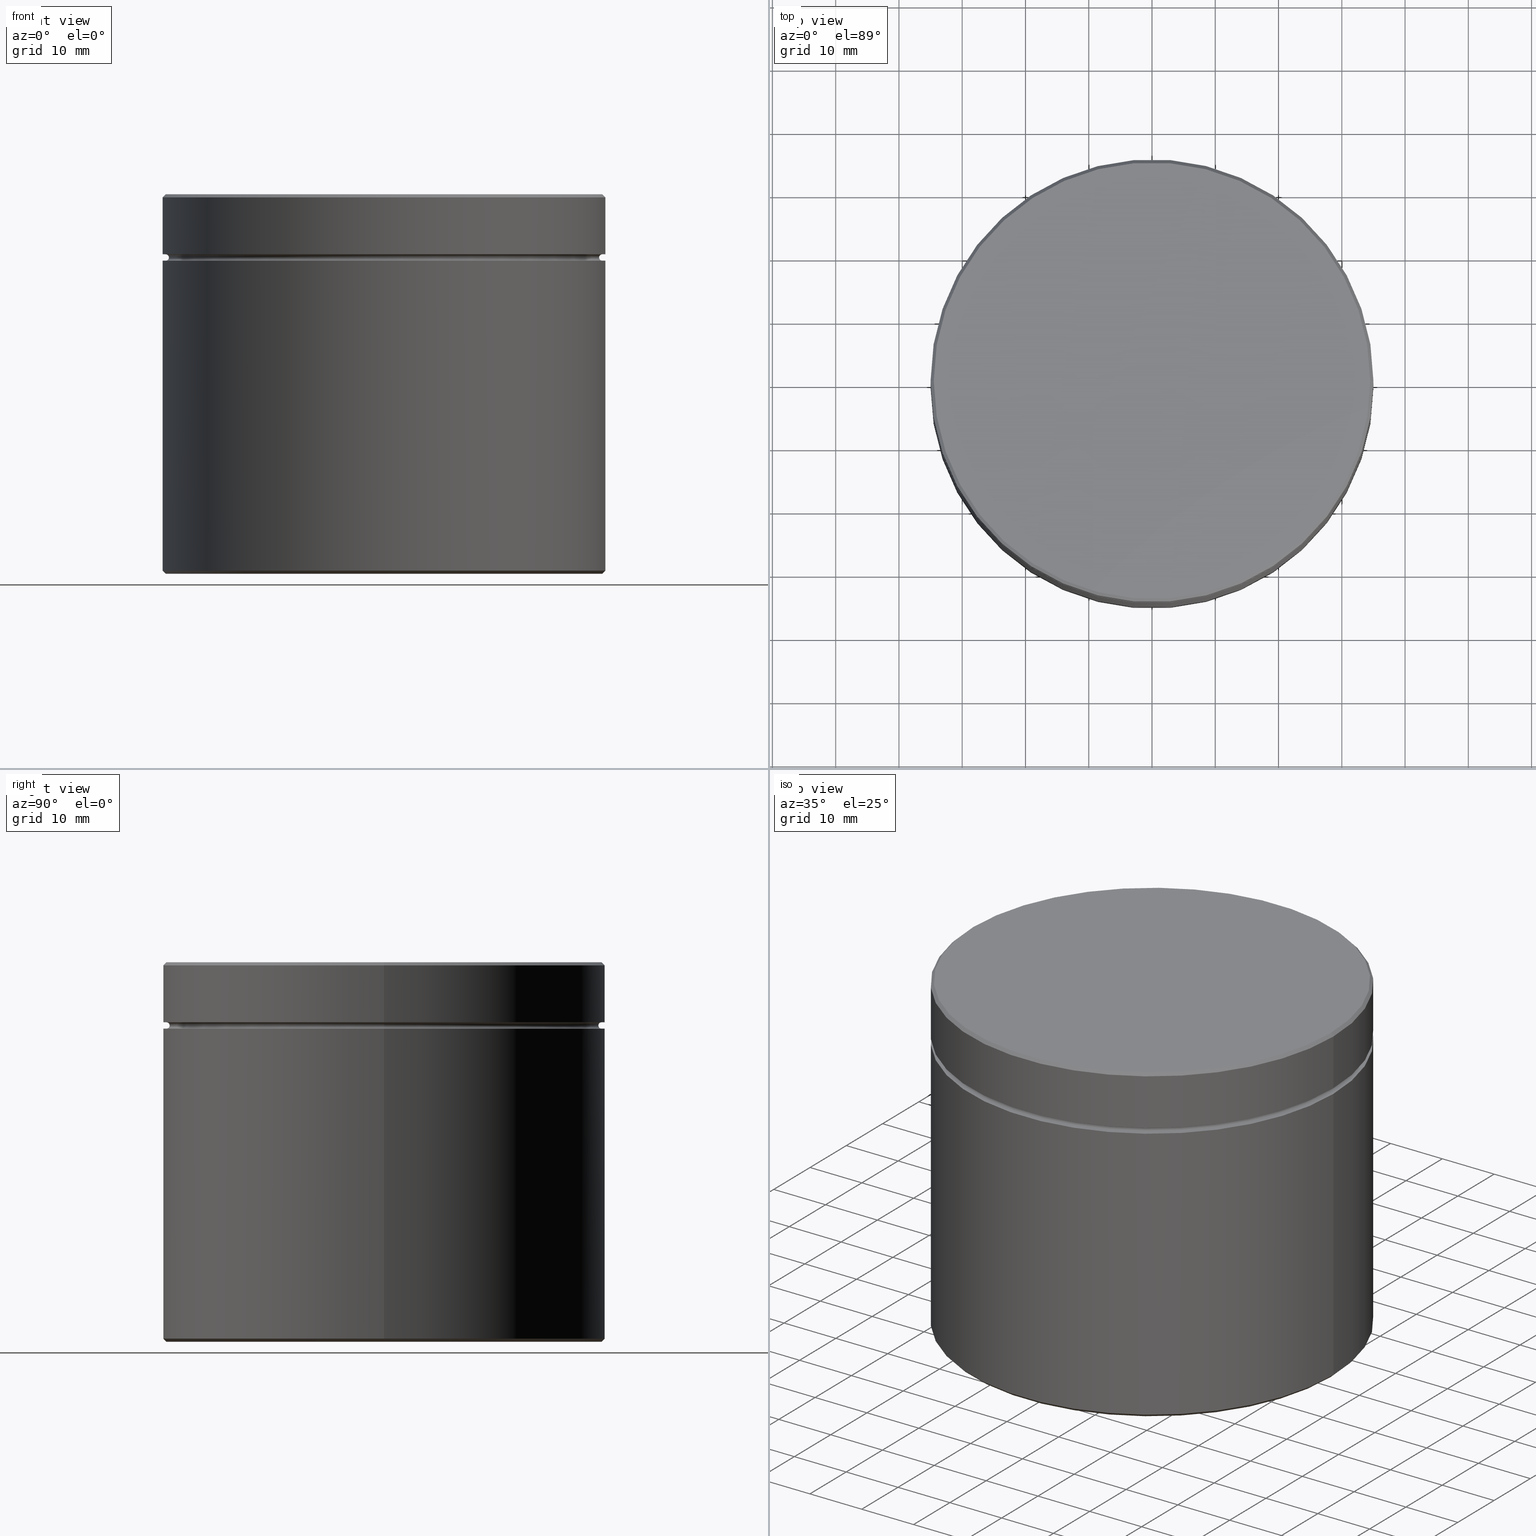
[diagram: canonical four-view strip — front | top / right | iso, engineering-drawing reading convention]
A machine part, canonical four-view strip (front | top / right | iso — engineering-drawing reading convention). The complete STEP part file that produces these views, byte-faithful:
ISO-10303-21;
HEADER;
FILE_DESCRIPTION (( 'STEP AP203' ),
    '1' );
FILE_NAME ('f571.STEP',
    '2024-01-08T12:13:48',
    ( '' ),
    ( '' ),
    'SwSTEP 2.0',
    'SolidWorks 2019',
    '' );
FILE_SCHEMA (( 'CONFIG_CONTROL_DESIGN' ));
ENDSEC;

DATA;
#1 = ORIENTED_EDGE ( 'NONE', *, *, #62, .F. ) ;
#2 = CARTESIAN_POINT ( 'NONE',  ( -25.00000000000000000, 0.000000000000000000, -17.99999999999999645 ) ) ;
#3 = AXIS2_PLACEMENT_3D ( 'NONE', #224, #495, #232 ) ;
#4 = CARTESIAN_POINT ( 'NONE',  ( 0.000000000000000000, 0.000000000000000000, -9.500000000000000000 ) ) ;
#5 = EDGE_LOOP ( 'NONE', ( #171, #150, #112, #20 ) ) ;
#6 = PERSON_AND_ORGANIZATION_ROLE ( 'design_owner' ) ;
#7 = DIRECTION ( 'NONE',  ( 0.000000000000000000, 0.000000000000000000, -1.000000000000000000 ) ) ;
#8 = PERSON_AND_ORGANIZATION_ROLE ( 'design_supplier' ) ;
#9 = EDGE_LOOP ( 'NONE', ( #514, #355 ) ) ;
#10 = VECTOR ( 'NONE', #418, 1000.000000000000000 ) ;
#11 = EDGE_CURVE ( 'NONE', #106, #347, #109, .T. ) ;
#12 = DIRECTION ( 'NONE',  ( 1.000000000000000000, 0.000000000000000000, 0.000000000000000000 ) ) ;
#13 = ORIENTED_EDGE ( 'NONE', *, *, #62, .T. ) ;
#14 = DIRECTION ( 'NONE',  ( -0.7071067811865426878, 8.659560562354874926E-17, 0.7071067811865524577 ) ) ;
#15 = AXIS2_PLACEMENT_3D ( 'NONE', #169, #354, #406 ) ;
#16 = ORIENTED_EDGE ( 'NONE', *, *, #276, .F. ) ;
#17 = CC_DESIGN_PERSON_AND_ORGANIZATION_ASSIGNMENT ( #310, #223, ( #245 ) ) ;
#18 = AXIS2_PLACEMENT_3D ( 'NONE', #126, #483, #440 ) ;
#19 = CARTESIAN_POINT ( 'NONE',  ( -34.50000000000002132, 4.255647627037053498E-15, -60.00000000000000000 ) ) ;
#20 = ORIENTED_EDGE ( 'NONE', *, *, #368, .F. ) ;
#21 = DIRECTION ( 'NONE',  ( -1.000000000000000000, 0.000000000000000000, -0.000000000000000000 ) ) ;
#22 = ORIENTED_EDGE ( 'NONE', *, *, #473, .F. ) ;
#23 = EDGE_CURVE ( 'NONE', #166, #345, #64, .T. ) ;
#24 = AXIS2_PLACEMENT_3D ( 'NONE', #118, #256, #258 ) ;
#25 = CARTESIAN_POINT ( 'NONE',  ( -34.50000000000000000, 4.225031457058368922E-15, -10.50000000000000178 ) ) ;
#26 = AXIS2_PLACEMENT_3D ( 'NONE', #272, #219, #405 ) ;
#27 =( NAMED_UNIT ( * ) SI_UNIT ( $, .STERADIAN. ) SOLID_ANGLE_UNIT ( ) );
#28 = DIRECTION ( 'NONE',  ( 0.7071067811865573427, 8.659560562355053653E-17, -0.7071067811865378028 ) ) ;
#29 = ADVANCED_FACE ( 'NONE', ( #477 ), #551, .T. ) ;
#30 = CYLINDRICAL_SURFACE ( 'NONE', #56, 35.00000000000000000 ) ;
#31 = AXIS2_PLACEMENT_3D ( 'NONE', #331, #184, #545 ) ;
#32 = AXIS2_PLACEMENT_3D ( 'NONE', #61, #53, #186 ) ;
#33 = CC_DESIGN_APPROVAL ( #287, ( #58 ) ) ;
#34 = FACE_OUTER_BOUND ( 'NONE', #132, .T. ) ;
#35 = ORIENTED_EDGE ( 'NONE', *, *, #368, .T. ) ;
#36 = CARTESIAN_POINT ( 'NONE',  ( 35.00000000000000000, 0.000000000000000000, -59.50000000000001421 ) ) ;
#37 = VERTEX_POINT ( 'NONE', #197 ) ;
#38 = APPROVAL_STATUS ( 'not_yet_approved' ) ;
#39 = CARTESIAN_POINT ( 'NONE',  ( 0.000000000000000000, 0.000000000000000000, -10.00000000000000178 ) ) ;
#40 = DIRECTION ( 'NONE',  ( -1.000000000000000000, 0.000000000000000000, 0.000000000000000000 ) ) ;
#41 = VERTEX_POINT ( 'NONE', #385 ) ;
#42 = COORDINATED_UNIVERSAL_TIME_OFFSET ( 1, 0, .AHEAD. ) ;
#43 = DIRECTION ( 'NONE',  ( 1.000000000000000000, 0.000000000000000000, 0.000000000000000000 ) ) ;
#44 = VECTOR ( 'NONE', #416, 1000.000000000000000 ) ;
#45 = FACE_OUTER_BOUND ( 'NONE', #96, .T. ) ;
#46 = ORIENTED_EDGE ( 'NONE', *, *, #324, .F. ) ;
#47 = APPROVAL_DATE_TIME ( #167, #502 ) ;
#48 = DIRECTION ( 'NONE',  ( -0.000000000000000000, -0.000000000000000000, -1.000000000000000000 ) ) ;
#49 = FACE_OUTER_BOUND ( 'NONE', #359, .T. ) ;
#50 = EDGE_LOOP ( 'NONE', ( #200, #222, #542, #294 ) ) ;
#51 = PERSON_AND_ORGANIZATION ( #250, #505 ) ;
#52 = EDGE_CURVE ( 'NONE', #372, #530, #274, .T. ) ;
#53 = DIRECTION ( 'NONE',  ( -0.000000000000000000, -0.000000000000000000, 1.000000000000000000 ) ) ;
#54 = ORIENTED_EDGE ( 'NONE', *, *, #361, .T. ) ;
#55 = FACE_OUTER_BOUND ( 'NONE', #455, .T. ) ;
#56 = AXIS2_PLACEMENT_3D ( 'NONE', #393, #446, #529 ) ;
#57 =( GEOMETRIC_REPRESENTATION_CONTEXT ( 3 ) GLOBAL_UNCERTAINTY_ASSIGNED_CONTEXT ( ( #191 ) ) GLOBAL_UNIT_ASSIGNED_CONTEXT ( ( #334, #65, #27 ) ) REPRESENTATION_CONTEXT ( 'NONE', 'WORKASPACE' ) );
#58 = SECURITY_CLASSIFICATION ( '', '', #260 ) ;
#59 = ORIENTED_EDGE ( 'NONE', *, *, #76, .T. ) ;
#60 = LINE ( 'NONE', #547, #10 ) ;
#61 = CARTESIAN_POINT ( 'NONE',  ( 0.000000000000000000, 0.000000000000000000, -59.50000000000001421 ) ) ;
#62 = EDGE_CURVE ( 'NONE', #506, #37, #159, .T. ) ;
#63 = ORIENTED_EDGE ( 'NONE', *, *, #299, .F. ) ;
#64 = CIRCLE ( 'NONE', #153, 35.00000000000000000 ) ;
#65 =( NAMED_UNIT ( * ) PLANE_ANGLE_UNIT ( ) SI_UNIT ( $, .RADIAN. ) );
#66 = CIRCLE ( 'NONE', #137, 25.00000000000000000 ) ;
#67 = VECTOR ( 'NONE', #48, 1000.000000000000000 ) ;
#68 = VERTEX_POINT ( 'NONE', #25 ) ;
#69 = CARTESIAN_POINT ( 'NONE',  ( -35.00000000000000000, 4.286263797015736496E-15, 0.000000000000000000 ) ) ;
#70 = ORIENTED_EDGE ( 'NONE', *, *, #76, .F. ) ;
#71 = EDGE_CURVE ( 'NONE', #144, #521, #107, .T. ) ;
#72 = EDGE_LOOP ( 'NONE', ( #336, #234, #94, #453 ) ) ;
#73 = CIRCLE ( 'NONE', #366, 35.00000000000000000 ) ;
#74 = EDGE_LOOP ( 'NONE', ( #264, #382, #461, #257 ) ) ;
#75 = AXIS2_PLACEMENT_3D ( 'NONE', #379, #292, #195 ) ;
#76 = EDGE_CURVE ( 'NONE', #345, #166, #73, .T. ) ;
#77 = CARTESIAN_POINT ( 'NONE',  ( 0.000000000000000000, 0.000000000000000000, -10.50000000000000000 ) ) ;
#78 = VERTEX_POINT ( 'NONE', #203 ) ;
#79 = PLANE ( 'NONE',  #423 ) ;
#80 = VERTEX_POINT ( 'NONE', #298 ) ;
#81 = DIRECTION ( 'NONE',  ( -0.000000000000000000, -1.000000000000000000, -0.000000000000000000 ) ) ;
#82 = DIRECTION ( 'NONE',  ( 0.000000000000000000, -0.000000000000000000, 1.000000000000000000 ) ) ;
#83 = CALENDAR_DATE ( 2024, 8, 1 ) ;
#84 = ADVANCED_FACE ( 'NONE', ( #431 ), #389, .F. ) ;
#85 = DIRECTION ( 'NONE',  ( 0.7071067811865426878, 0.000000000000000000, 0.7071067811865524577 ) ) ;
#86 = ORIENTED_EDGE ( 'NONE', *, *, #238, .F. ) ;
#87 = DIRECTION ( 'NONE',  ( 1.000000000000000000, 0.000000000000000000, 0.000000000000000000 ) ) ;
#88 = DIRECTION ( 'NONE',  ( 1.000000000000000000, 0.000000000000000000, 0.000000000000000000 ) ) ;
#89 = ORIENTED_EDGE ( 'NONE', *, *, #276, .T. ) ;
#90 = APPROVAL_DATE_TIME ( #314, #233 ) ;
#91 = APPROVAL_PERSON_ORGANIZATION ( #97, #502, #317 ) ;
#92 = FACE_OUTER_BOUND ( 'NONE', #9, .T. ) ;
#93 = ADVANCED_FACE ( 'NONE', ( #390 ), #263, .F. ) ;
#94 = ORIENTED_EDGE ( 'NONE', *, *, #187, .F. ) ;
#95 = CARTESIAN_POINT ( 'NONE',  ( 35.00000000000000000, 0.000000000000000000, -59.50000000000001421 ) ) ;
#96 = EDGE_LOOP ( 'NONE', ( #211, #430, #1, #259 ) ) ;
#97 = PERSON_AND_ORGANIZATION ( #250, #505 ) ;
#98 = CARTESIAN_POINT ( 'NONE',  ( 0.000000000000000000, 0.000000000000000000, -0.4999999999999727995 ) ) ;
#99 = DIRECTION ( 'NONE',  ( -0.000000000000000000, -0.000000000000000000, 1.000000000000000000 ) ) ;
#100 = ORIENTED_EDGE ( 'NONE', *, *, #540, .F. ) ;
#101 = EDGE_CURVE ( 'NONE', #106, #339, #488, .T. ) ;
#102 = LOCAL_TIME ( 13, 13, 48.00000000000000000, #42 ) ;
#103 = ORIENTED_EDGE ( 'NONE', *, *, #557, .T. ) ;
#104 = DIRECTION ( 'NONE',  ( -0.000000000000000000, -0.000000000000000000, 1.000000000000000000 ) ) ;
#105 = DIRECTION ( 'NONE',  ( -1.000000000000000000, 0.000000000000000000, 0.000000000000000000 ) ) ;
#106 = VERTEX_POINT ( 'NONE', #564 ) ;
#107 = CIRCLE ( 'NONE', #285, 25.00000000000000000 ) ;
#108 = AXIS2_PLACEMENT_3D ( 'NONE', #457, #289, #21 ) ;
#109 = LINE ( 'NONE', #343, #346 ) ;
#110 = ADVANCED_FACE ( 'NONE', ( #303 ), #146, .T. ) ;
#111 = DIRECTION ( 'NONE',  ( 0.000000000000000000, 0.000000000000000000, -1.000000000000000000 ) ) ;
#112 = ORIENTED_EDGE ( 'NONE', *, *, #145, .T. ) ;
#113 = EDGE_LOOP ( 'NONE', ( #300, #410, #128, #16 ) ) ;
#114 = CC_DESIGN_DATE_AND_TIME_ASSIGNMENT ( #411, #498, ( #311 ) ) ;
#115 = DIRECTION ( 'NONE',  ( 1.000000000000000000, 0.000000000000000000, 0.000000000000000000 ) ) ;
#116 = CC_DESIGN_APPROVAL ( #502, ( #245 ) ) ;
#117 = ORIENTED_EDGE ( 'NONE', *, *, #283, .F. ) ;
#118 = CARTESIAN_POINT ( 'NONE',  ( 0.000000000000000000, 0.000000000000000000, -59.50000000000001421 ) ) ;
#119 = ORIENTED_EDGE ( 'NONE', *, *, #101, .F. ) ;
#120 = CARTESIAN_POINT ( 'NONE',  ( 0.000000000000000000, 0.000000000000000000, -59.50000000000001421 ) ) ;
#121 = DIRECTION ( 'NONE',  ( 1.000000000000000000, 0.000000000000000000, 0.000000000000000000 ) ) ;
#122 = APPROVAL_PERSON_ORGANIZATION ( #227, #233, #129 ) ;
#123 = EDGE_LOOP ( 'NONE', ( #465, #103, #140, #117 ) ) ;
#124 = MECHANICAL_CONTEXT ( 'NONE', #481, 'mechanical' ) ;
#125 = EDGE_CURVE ( 'NONE', #530, #372, #544, .T. ) ;
#126 = CARTESIAN_POINT ( 'NONE',  ( 0.000000000000000000, 35.00000000000000000, -60.00000000000000000 ) ) ;
#127 = CARTESIAN_POINT ( 'NONE',  ( -35.00000000000000000, 4.286263797015736496E-15, -10.50000000000000000 ) ) ;
#128 = ORIENTED_EDGE ( 'NONE', *, *, #261, .T. ) ;
#129 = APPROVAL_ROLE ( '' ) ;
#130 = CARTESIAN_POINT ( 'NONE',  ( -34.50000000000000000, 0.000000000000000000, -9.499999999999998224 ) ) ;
#131 = LINE ( 'NONE', #36, #391 ) ;
#132 = EDGE_LOOP ( 'NONE', ( #476, #100, #511, #54 ) ) ;
#133 = CARTESIAN_POINT ( 'NONE',  ( -25.00000000000000000, 0.000000000000000000, -17.99999999999999645 ) ) ;
#134 = EDGE_CURVE ( 'NONE', #37, #506, #503, .T. ) ;
#135 = DIRECTION ( 'NONE',  ( -1.224646799147353207E-16, 1.000000000000000000, 0.000000000000000000 ) ) ;
#136 = ORIENTED_EDGE ( 'NONE', *, *, #519, .F. ) ;
#137 = AXIS2_PLACEMENT_3D ( 'NONE', #262, #441, #40 ) ;
#138 = DIRECTION ( 'NONE',  ( 1.000000000000000000, 0.000000000000000000, 0.000000000000000000 ) ) ;
#139 = VECTOR ( 'NONE', #419, 1000.000000000000000 ) ;
#140 = ORIENTED_EDGE ( 'NONE', *, *, #437, .T. ) ;
#141 = EDGE_LOOP ( 'NONE', ( #280, #328 ) ) ;
#142 = DIRECTION ( 'NONE',  ( 1.000000000000000000, 0.000000000000000000, 0.000000000000000000 ) ) ;
#143 = DIRECTION ( 'NONE',  ( -1.000000000000000000, 1.224646799147349509E-16, 0.000000000000000000 ) ) ;
#144 = VERTEX_POINT ( 'NONE', #365 ) ;
#145 = EDGE_CURVE ( 'NONE', #80, #218, #444, .T. ) ;
#146 = CONICAL_SURFACE ( 'NONE', #413, 35.00000000000000000, 0.7853981633974415066 ) ;
#147 = PRODUCT_RELATED_PRODUCT_CATEGORY ( 'detail', '', ( #356 ) ) ;
#148 = VECTOR ( 'NONE', #241, 1000.000000000000000 ) ;
#149 = CARTESIAN_POINT ( 'NONE',  ( 35.00000000000000000, 0.000000000000000000, -0.4999999999999727995 ) ) ;
#150 = ORIENTED_EDGE ( 'NONE', *, *, #348, .F. ) ;
#151 = DIRECTION ( 'NONE',  ( 1.000000000000000000, 0.000000000000000000, 0.000000000000000000 ) ) ;
#152 = CALENDAR_DATE ( 2024, 8, 1 ) ;
#153 = AXIS2_PLACEMENT_3D ( 'NONE', #77, #554, #291 ) ;
#154 = EDGE_CURVE ( 'NONE', #80, #37, #516, .T. ) ;
#155 = AXIS2_PLACEMENT_3D ( 'NONE', #409, #509, #270 ) ;
#156 = CARTESIAN_POINT ( 'NONE',  ( 0.000000000000000000, 0.000000000000000000, 0.000000000000000000 ) ) ;
#157 = CARTESIAN_POINT ( 'NONE',  ( 0.000000000000000000, 0.000000000000000000, -9.499999999999998224 ) ) ;
#158 = ADVANCED_FACE ( 'NONE', ( #492 ), #30, .T. ) ;
#159 = CIRCLE ( 'NONE', #237, 34.50000000000000000 ) ;
#160 = CARTESIAN_POINT ( 'NONE',  ( 0.000000000000000000, 0.000000000000000000, -10.50000000000000000 ) ) ;
#161 = CC_DESIGN_DATE_AND_TIME_ASSIGNMENT ( #373, #189, ( #58 ) ) ;
#162 = AXIS2_PLACEMENT_3D ( 'NONE', #380, #192, #105 ) ;
#163 = CARTESIAN_POINT ( 'NONE',  ( 0.000000000000000000, 0.000000000000000000, 0.000000000000000000 ) ) ;
#164 = MANIFOLD_SOLID_BREP ( 'Zaoblit1', #202 ) ;
#165 = ADVANCED_FACE ( 'NONE', ( #92 ), #79, .T. ) ;
#166 = VERTEX_POINT ( 'NONE', #127 ) ;
#167 = DATE_AND_TIME ( #172, #321 ) ;
#168 = PRODUCT_DEFINITION_SHAPE ( 'NONE', 'NONE',  #311 ) ;
#169 = CARTESIAN_POINT ( 'NONE',  ( 0.000000000000000000, 0.000000000000000000, -10.00000000000000178 ) ) ;
#170 = AXIS2_PLACEMENT_3D ( 'NONE', #225, #81, #301 ) ;
#171 = ORIENTED_EDGE ( 'NONE', *, *, #295, .F. ) ;
#172 = CALENDAR_DATE ( 2024, 8, 1 ) ;
#173 = CARTESIAN_POINT ( 'NONE',  ( 25.00000000000000000, 3.061616997868382254E-15, -17.99999999999999645 ) ) ;
#174 = CARTESIAN_POINT ( 'NONE',  ( 0.000000000000000000, 0.000000000000000000, -17.99999999999999645 ) ) ;
#175 = ORIENTED_EDGE ( 'NONE', *, *, #134, .T. ) ;
#176 = APPLICATION_PROTOCOL_DEFINITION ( 'international standard', 'config_control_design', 1994, #332 ) ;
#177 = ADVANCED_FACE ( 'NONE', ( #435 ), #254, .T. ) ;
#178 = DIRECTION ( 'NONE',  ( -1.000000000000000000, 0.000000000000000000, 0.000000000000000000 ) ) ;
#179 = VERTEX_POINT ( 'NONE', #363 ) ;
#180 = CARTESIAN_POINT ( 'NONE',  ( 0.000000000000000000, 0.000000000000000000, -10.50000000000000178 ) ) ;
#181 = CARTESIAN_POINT ( 'NONE',  ( 0.000000000000000000, 0.000000000000000000, -60.00000000000000000 ) ) ;
#182 = EDGE_LOOP ( 'NONE', ( #86, #370 ) ) ;
#183 = AXIS2_PLACEMENT_3D ( 'NONE', #181, #282, #338 ) ;
#184 = DIRECTION ( 'NONE',  ( 0.000000000000000000, 0.000000000000000000, -1.000000000000000000 ) ) ;
#185 = PLANE ( 'NONE',  #18 ) ;
#186 = DIRECTION ( 'NONE',  ( -1.000000000000000000, 0.000000000000000000, 0.000000000000000000 ) ) ;
#187 = EDGE_CURVE ( 'NONE', #439, #41, #230, .T. ) ;
#188 = ORIENTED_EDGE ( 'NONE', *, *, #11, .T. ) ;
#189 = DATE_TIME_ROLE ( 'classification_date' ) ;
#190 = CARTESIAN_POINT ( 'NONE',  ( -25.00000000000000000, 0.000000000000000000, -60.00000000000000000 ) ) ;
#191 = UNCERTAINTY_MEASURE_WITH_UNIT (LENGTH_MEASURE( 1.000000000000000082E-05 ), #334, 'distance_accuracy_value', 'NONE');
#192 = DIRECTION ( 'NONE',  ( -0.000000000000000000, -0.000000000000000000, -1.000000000000000000 ) ) ;
#193 = CARTESIAN_POINT ( 'NONE',  ( 0.000000000000000000, 0.000000000000000000, -9.500000000000000000 ) ) ;
#194 = AXIS2_PLACEMENT_3D ( 'NONE', #499, #549, #151 ) ;
#195 = DIRECTION ( 'NONE',  ( -1.000000000000000000, 0.000000000000000000, 0.000000000000000000 ) ) ;
#196 = ADVANCED_FACE ( 'NONE', ( #34 ), #438, .F. ) ;
#197 = CARTESIAN_POINT ( 'NONE',  ( 34.50000000000000000, 4.225031457058368922E-15, -9.499999999999998224 ) ) ;
#198 = LOCAL_TIME ( 13, 13, 48.00000000000000000, #325 ) ;
#199 = EDGE_CURVE ( 'NONE', #372, #439, #131, .T. ) ;
#200 = ORIENTED_EDGE ( 'NONE', *, *, #154, .F. ) ;
#201 = CARTESIAN_POINT ( 'NONE',  ( 0.000000000000000000, 0.000000000000000000, -60.00000000000000000 ) ) ;
#202 = CLOSED_SHELL ( 'NONE', ( #253, #480, #384, #177, #335, #29, #429, #510, #165, #397, #408, #467, #158, #196, #563, #548, #110, #93, #84 ) ) ;
#203 = CARTESIAN_POINT ( 'NONE',  ( -34.00000000000000000, 4.194415287079684346E-15, -10.00000000000000178 ) ) ;
#204 = AXIS2_PLACEMENT_3D ( 'NONE', #307, #358, #206 ) ;
#205 = VECTOR ( 'NONE', #14, 1000.000000000000000 ) ;
#206 = DIRECTION ( 'NONE',  ( -1.000000000000000000, 0.000000000000000000, 0.000000000000000000 ) ) ;
#207 = EDGE_CURVE ( 'NONE', #179, #494, #66, .T. ) ;
#208 = DIRECTION ( 'NONE',  ( 0.000000000000000000, -1.000000000000000000, 0.000000000000000000 ) ) ;
#209 = DIRECTION ( 'NONE',  ( 0.000000000000000000, 0.000000000000000000, -1.000000000000000000 ) ) ;
#210 = CARTESIAN_POINT ( 'NONE',  ( 0.000000000000000000, 0.000000000000000000, 0.000000000000000000 ) ) ;
#211 = ORIENTED_EDGE ( 'NONE', *, *, #519, .T. ) ;
#212 = PERSON_AND_ORGANIZATION ( #250, #505 ) ;
#213 = ADVANCED_BREP_SHAPE_REPRESENTATION ( 'f571', ( #164, #26 ), #57 ) ;
#214 = DIRECTION ( 'NONE',  ( -0.000000000000000000, -0.000000000000000000, -1.000000000000000000 ) ) ;
#215 = CARTESIAN_POINT ( 'NONE',  ( 34.50000000000000000, 0.000000000000000000, -10.50000000000000178 ) ) ;
#216 = CC_DESIGN_PERSON_AND_ORGANIZATION_ASSIGNMENT ( #407, #269, ( #311 ) ) ;
#217 = CIRCLE ( 'NONE', #333, 34.00000000000000000 ) ;
#218 = VERTEX_POINT ( 'NONE', #215 ) ;
#219 = DIRECTION ( 'NONE',  ( 0.000000000000000000, 0.000000000000000000, 1.000000000000000000 ) ) ;
#220 = CARTESIAN_POINT ( 'NONE',  ( 0.000000000000000000, 0.000000000000000000, -10.00000000000000178 ) ) ;
#221 = DIRECTION ( 'NONE',  ( -0.000000000000000000, -0.000000000000000000, 1.000000000000000000 ) ) ;
#222 = ORIENTED_EDGE ( 'NONE', *, *, #348, .T. ) ;
#223 = PERSON_AND_ORGANIZATION_ROLE ( 'creator' ) ;
#224 = CARTESIAN_POINT ( 'NONE',  ( 0.000000000000000000, 34.00000000000000000, -10.50000000000000178 ) ) ;
#225 = CARTESIAN_POINT ( 'NONE',  ( -34.50000000000000000, 0.000000000000000000, -9.999999999999998224 ) ) ;
#226 = VERTEX_POINT ( 'NONE', #403 ) ;
#227 = PERSON_AND_ORGANIZATION ( #250, #505 ) ;
#228 = CARTESIAN_POINT ( 'NONE',  ( 0.000000000000000000, 0.000000000000000000, -10.00000000000000178 ) ) ;
#229 = EDGE_LOOP ( 'NONE', ( #479, #436 ) ) ;
#230 = CIRCLE ( 'NONE', #24, 35.00000000000000000 ) ;
#231 = AXIS2_PLACEMENT_3D ( 'NONE', #452, #414, #143 ) ;
#232 = DIRECTION ( 'NONE',  ( 1.000000000000000000, 0.000000000000000000, 0.000000000000000000 ) ) ;
#233 = APPROVAL ( #538, 'NEUR�EN�' ) ;
#234 = ORIENTED_EDGE ( 'NONE', *, *, #324, .T. ) ;
#235 = DIRECTION ( 'NONE',  ( -0.000000000000000000, -0.000000000000000000, 1.000000000000000000 ) ) ;
#236 = CARTESIAN_POINT ( 'NONE',  ( -35.00000000000000000, 4.286263797015736496E-15, -0.4999999999999727995 ) ) ;
#237 = AXIS2_PLACEMENT_3D ( 'NONE', #157, #387, #427 ) ;
#238 = EDGE_CURVE ( 'NONE', #226, #278, #464, .T. ) ;
#239 = AXIS2_PLACEMENT_3D ( 'NONE', #478, #208, #522 ) ;
#240 = VECTOR ( 'NONE', #104, 1000.000000000000000 ) ;
#241 = DIRECTION ( 'NONE',  ( -0.000000000000000000, -0.000000000000000000, 1.000000000000000000 ) ) ;
#242 = CARTESIAN_POINT ( 'NONE',  ( 0.000000000000000000, 0.000000000000000000, 0.000000000000000000 ) ) ;
#243 = DIRECTION ( 'NONE',  ( -0.000000000000000000, -0.000000000000000000, 1.000000000000000000 ) ) ;
#244 = CARTESIAN_POINT ( 'NONE',  ( 0.000000000000000000, 0.000000000000000000, 0.000000000000000000 ) ) ;
#245 = PRODUCT_DEFINITION_FORMATION_WITH_SPECIFIED_SOURCE ( 'LIBOVOLN�', '', #356, .NOT_KNOWN. ) ;
#246 = CC_DESIGN_PERSON_AND_ORGANIZATION_ASSIGNMENT ( #51, #6, ( #356 ) ) ;
#247 = LOCAL_TIME ( 13, 13, 48.00000000000000000, #284 ) ;
#248 = ORIENTED_EDGE ( 'NONE', *, *, #23, .T. ) ;
#249 = DIRECTION ( 'NONE',  ( 0.000000000000000000, 0.000000000000000000, -1.000000000000000000 ) ) ;
#250 = PERSON ( 'NEUR�EN�', 'NEUR�EN�', 'NEUR�EN�', ('NEUR�EN�'), ('NEUR�EN�'), ('NEUR�EN�') ) ;
#251 = DIRECTION ( 'NONE',  ( -0.000000000000000000, -0.000000000000000000, 1.000000000000000000 ) ) ;
#252 = APPLICATION_PROTOCOL_DEFINITION ( 'international standard', 'config_control_design', 1994, #481 ) ;
#253 = ADVANCED_FACE ( 'NONE', ( #45 ), #288, .F. ) ;
#254 = CONICAL_SURFACE ( 'NONE', #561, 34.50000000000001421, 0.7853981633974621568 ) ;
#255 = AXIS2_PLACEMENT_3D ( 'NONE', #156, #286, #353 ) ;
#256 = DIRECTION ( 'NONE',  ( -0.000000000000000000, -0.000000000000000000, 1.000000000000000000 ) ) ;
#257 = ORIENTED_EDGE ( 'NONE', *, *, #23, .F. ) ;
#258 = DIRECTION ( 'NONE',  ( -1.000000000000000000, 0.000000000000000000, 0.000000000000000000 ) ) ;
#259 = ORIENTED_EDGE ( 'NONE', *, *, #376, .F. ) ;
#260 = SECURITY_CLASSIFICATION_LEVEL ( 'unclassified' ) ;
#261 = EDGE_CURVE ( 'NONE', #339, #304, #323, .T. ) ;
#262 = CARTESIAN_POINT ( 'NONE',  ( 0.000000000000000000, 0.000000000000000000, -17.99999999999999645 ) ) ;
#263 = TOROIDAL_SURFACE ( 'NONE', #15, 34.50000000000000000, 0.5000000000000000000 ) ;
#264 = ORIENTED_EDGE ( 'NONE', *, *, #426, .F. ) ;
#265 = DIRECTION ( 'NONE',  ( 1.000000000000000000, 0.000000000000000000, 0.000000000000000000 ) ) ;
#266 = AXIS2_PLACEMENT_3D ( 'NONE', #482, #135, #318 ) ;
#267 = AXIS2_PLACEMENT_3D ( 'NONE', #39, #243, #340 ) ;
#268 = ORIENTED_EDGE ( 'NONE', *, *, #437, .F. ) ;
#269 = PERSON_AND_ORGANIZATION_ROLE ( 'creator' ) ;
#270 = DIRECTION ( 'NONE',  ( 1.000000000000000000, 0.000000000000000000, 0.000000000000000000 ) ) ;
#271 = ORIENTED_EDGE ( 'NONE', *, *, #71, .T. ) ;
#272 = CARTESIAN_POINT ( 'NONE',  ( 0.000000000000000000, 0.000000000000000000, 0.000000000000000000 ) ) ;
#273 = LINE ( 'NONE', #422, #44 ) ;
#274 = CIRCLE ( 'NONE', #533, 34.50000000000002132 ) ;
#275 = COORDINATED_UNIVERSAL_TIME_OFFSET ( 1, 0, .AHEAD. ) ;
#276 = EDGE_CURVE ( 'NONE', #347, #304, #562, .T. ) ;
#277 = LINE ( 'NONE', #173, #67 ) ;
#278 = VERTEX_POINT ( 'NONE', #327 ) ;
#279 = CIRCLE ( 'NONE', #32, 35.00000000000000000 ) ;
#280 = ORIENTED_EDGE ( 'NONE', *, *, #361, .F. ) ;
#281 = DIRECTION ( 'NONE',  ( -1.000000000000000000, 0.000000000000000000, 0.000000000000000000 ) ) ;
#282 = DIRECTION ( 'NONE',  ( 0.000000000000000000, 0.000000000000000000, -1.000000000000000000 ) ) ;
#283 = EDGE_CURVE ( 'NONE', #226, #347, #273, .T. ) ;
#284 = COORDINATED_UNIVERSAL_TIME_OFFSET ( 1, 0, .AHEAD. ) ;
#285 = AXIS2_PLACEMENT_3D ( 'NONE', #386, #556, #559 ) ;
#286 = DIRECTION ( 'NONE',  ( -0.000000000000000000, -0.000000000000000000, 1.000000000000000000 ) ) ;
#287 = APPROVAL ( #456, 'NEUR�EN�' ) ;
#288 = TOROIDAL_SURFACE ( 'NONE', #31, 34.50000000000000000, 0.5000000000000000000 ) ;
#289 = DIRECTION ( 'NONE',  ( 0.000000000000000000, 0.000000000000000000, -1.000000000000000000 ) ) ;
#290 = CIRCLE ( 'NONE', #231, 0.5000000000000004441 ) ;
#291 = DIRECTION ( 'NONE',  ( 1.000000000000000000, 0.000000000000000000, 0.000000000000000000 ) ) ;
#292 = DIRECTION ( 'NONE',  ( 0.000000000000000000, 0.000000000000000000, -1.000000000000000000 ) ) ;
#293 = PLANE ( 'NONE',  #466 ) ;
#294 = ORIENTED_EDGE ( 'NONE', *, *, #134, .F. ) ;
#295 = EDGE_CURVE ( 'NONE', #78, #68, #290, .T. ) ;
#296 = EDGE_LOOP ( 'NONE', ( #459, #523 ) ) ;
#297 = VECTOR ( 'NONE', #214, 1000.000000000000000 ) ;
#298 = CARTESIAN_POINT ( 'NONE',  ( 34.00000000000000000, 0.000000000000000000, -10.00000000000000178 ) ) ;
#299 = EDGE_CURVE ( 'NONE', #41, #439, #279, .T. ) ;
#300 = ORIENTED_EDGE ( 'NONE', *, *, #11, .F. ) ;
#301 = DIRECTION ( 'NONE',  ( 0.000000000000000000, 0.000000000000000000, -1.000000000000000000 ) ) ;
#302 = AXIS2_PLACEMENT_3D ( 'NONE', #315, #394, #520 ) ;
#303 = FACE_OUTER_BOUND ( 'NONE', #497, .T. ) ;
#304 = VERTEX_POINT ( 'NONE', #236 ) ;
#305 = FACE_BOUND ( 'NONE', #442, .T. ) ;
#306 = CIRCLE ( 'NONE', #341, 35.00000000000000000 ) ;
#307 = CARTESIAN_POINT ( 'NONE',  ( 0.000000000000000000, 0.000000000000000000, -9.499999999999998224 ) ) ;
#308 = CC_DESIGN_SECURITY_CLASSIFICATION ( #58, ( #245 ) ) ;
#309 = ORIENTED_EDGE ( 'NONE', *, *, #52, .F. ) ;
#310 = PERSON_AND_ORGANIZATION ( #250, #505 ) ;
#311 = PRODUCT_DEFINITION ( 'NEZN�M�', '', #245, #374 ) ;
#312 = DIRECTION ( 'NONE',  ( -1.000000000000000000, 0.000000000000000000, 0.000000000000000000 ) ) ;
#313 = EDGE_LOOP ( 'NONE', ( #490, #35 ) ) ;
#314 = DATE_AND_TIME ( #83, #198 ) ;
#315 = CARTESIAN_POINT ( 'NONE',  ( 0.000000000000000000, 0.000000000000000000, -9.999999999999998224 ) ) ;
#316 = ORIENTED_EDGE ( 'NONE', *, *, #426, .T. ) ;
#317 = APPROVAL_ROLE ( '' ) ;
#318 = DIRECTION ( 'NONE',  ( -1.000000000000000000, -1.224646799147349509E-16, 0.000000000000000000 ) ) ;
#319 = CIRCLE ( 'NONE', #170, 0.5000000000000004441 ) ;
#320 = EDGE_LOOP ( 'NONE', ( #513, #316, #70, #485 ) ) ;
#321 = LOCAL_TIME ( 13, 13, 48.00000000000000000, #275 ) ;
#322 = DIRECTION ( 'NONE',  ( -0.000000000000000000, -0.000000000000000000, 1.000000000000000000 ) ) ;
#323 = LINE ( 'NONE', #496, #139 ) ;
#324 = EDGE_CURVE ( 'NONE', #530, #41, #377, .T. ) ;
#325 = COORDINATED_UNIVERSAL_TIME_OFFSET ( 1, 0, .AHEAD. ) ;
#326 = DIRECTION ( 'NONE',  ( -0.000000000000000000, -0.000000000000000000, 1.000000000000000000 ) ) ;
#327 = CARTESIAN_POINT ( 'NONE',  ( -35.00000000000000000, 4.286263797015736496E-15, -9.500000000000000000 ) ) ;
#328 = ORIENTED_EDGE ( 'NONE', *, *, #71, .F. ) ;
#329 = DATE_AND_TIME ( #152, #247 ) ;
#330 = PLANE ( 'NONE',  #108 ) ;
#331 = CARTESIAN_POINT ( 'NONE',  ( 0.000000000000000000, 0.000000000000000000, -9.999999999999998224 ) ) ;
#332 = APPLICATION_CONTEXT ( 'configuration controlled 3d designs of mechanical parts and assemblies' ) ;
#333 = AXIS2_PLACEMENT_3D ( 'NONE', #228, #99, #12 ) ;
#334 =( LENGTH_UNIT ( ) NAMED_UNIT ( * ) SI_UNIT ( .MILLI., .METRE. ) );
#335 = ADVANCED_FACE ( 'NONE', ( #49 ), #460, .F. ) ;
#336 = ORIENTED_EDGE ( 'NONE', *, *, #125, .F. ) ;
#337 = PERSON_AND_ORGANIZATION ( #250, #505 ) ;
#338 = DIRECTION ( 'NONE',  ( -1.000000000000000000, 0.000000000000000000, 0.000000000000000000 ) ) ;
#339 = VERTEX_POINT ( 'NONE', #541 ) ;
#340 = DIRECTION ( 'NONE',  ( 1.000000000000000000, 0.000000000000000000, 0.000000000000000000 ) ) ;
#341 = AXIS2_PLACEMENT_3D ( 'NONE', #193, #235, #142 ) ;
#342 = FACE_OUTER_BOUND ( 'NONE', #182, .T. ) ;
#343 = CARTESIAN_POINT ( 'NONE',  ( 34.50000000000001421, 4.225031457058370500E-15, 0.000000000000000000 ) ) ;
#344 = EDGE_CURVE ( 'NONE', #339, #106, #378, .T. ) ;
#345 = VERTEX_POINT ( 'NONE', #508 ) ;
#346 = VECTOR ( 'NONE', #28, 1000.000000000000000 ) ;
#347 = VERTEX_POINT ( 'NONE', #149 ) ;
#348 = EDGE_CURVE ( 'NONE', #80, #78, #217, .T. ) ;
#349 = CIRCLE ( 'NONE', #75, 25.00000000000000000 ) ;
#350 = ORIENTED_EDGE ( 'NONE', *, *, #283, .T. ) ;
#351 = DIRECTION ( 'NONE',  ( 0.000000000000000000, 0.000000000000000000, -1.000000000000000000 ) ) ;
#352 = EDGE_LOOP ( 'NONE', ( #119, #188, #268, #448 ) ) ;
#353 = DIRECTION ( 'NONE',  ( 1.000000000000000000, 0.000000000000000000, 0.000000000000000000 ) ) ;
#354 = DIRECTION ( 'NONE',  ( -0.000000000000000000, -0.000000000000000000, 1.000000000000000000 ) ) ;
#355 = ORIENTED_EDGE ( 'NONE', *, *, #101, .T. ) ;
#356 = PRODUCT ( 'f571', 'f571', '', ( #124 ) ) ;
#357 = CC_DESIGN_APPROVAL ( #233, ( #311 ) ) ;
#358 = DIRECTION ( 'NONE',  ( -0.000000000000000000, -0.000000000000000000, 1.000000000000000000 ) ) ;
#359 = EDGE_LOOP ( 'NONE', ( #404, #367, #271, #526 ) ) ;
#360 = PERSON_AND_ORGANIZATION ( #250, #505 ) ;
#361 = EDGE_CURVE ( 'NONE', #521, #144, #434, .T. ) ;
#362 = CYLINDRICAL_SURFACE ( 'NONE', #445, 35.00000000000000000 ) ;
#363 = CARTESIAN_POINT ( 'NONE',  ( 25.00000000000000000, 3.061616997868382254E-15, -17.99999999999999645 ) ) ;
#364 = PLANE ( 'NONE',  #3 ) ;
#365 = CARTESIAN_POINT ( 'NONE',  ( 25.00000000000000000, 3.061616997868382254E-15, -60.00000000000000000 ) ) ;
#366 = AXIS2_PLACEMENT_3D ( 'NONE', #160, #515, #115 ) ;
#367 = ORIENTED_EDGE ( 'NONE', *, *, #458, .T. ) ;
#368 = EDGE_CURVE ( 'NONE', #68, #218, #468, .T. ) ;
#369 = AXIS2_PLACEMENT_3D ( 'NONE', #242, #111, #281 ) ;
#370 = ORIENTED_EDGE ( 'NONE', *, *, #527, .F. ) ;
#371 = DIRECTION ( 'NONE',  ( 1.000000000000000000, 0.000000000000000000, 0.000000000000000000 ) ) ;
#372 = VERTEX_POINT ( 'NONE', #450 ) ;
#373 = DATE_AND_TIME ( #425, #493 ) ;
#374 = DESIGN_CONTEXT ( 'detailed design', #332, 'design' ) ;
#375 = CARTESIAN_POINT ( 'NONE',  ( -35.00000000000000000, 4.286263797015736496E-15, -59.50000000000001421 ) ) ;
#376 = EDGE_CURVE ( 'NONE', #78, #506, #319, .T. ) ;
#377 = LINE ( 'NONE', #375, #205 ) ;
#378 = CIRCLE ( 'NONE', #194, 34.50000000000001421 ) ;
#379 = CARTESIAN_POINT ( 'NONE',  ( 0.000000000000000000, 0.000000000000000000, -17.99999999999999645 ) ) ;
#380 = CARTESIAN_POINT ( 'NONE',  ( 0.000000000000000000, 0.000000000000000000, -17.99999999999999645 ) ) ;
#381 = FACE_OUTER_BOUND ( 'NONE', #113, .T. ) ;
#382 = ORIENTED_EDGE ( 'NONE', *, *, #299, .T. ) ;
#383 = FACE_OUTER_BOUND ( 'NONE', #500, .T. ) ;
#384 = ADVANCED_FACE ( 'NONE', ( #565 ), #402, .T. ) ;
#385 = CARTESIAN_POINT ( 'NONE',  ( -35.00000000000000000, 4.286263797015736496E-15, -59.50000000000001421 ) ) ;
#386 = CARTESIAN_POINT ( 'NONE',  ( 0.000000000000000000, 0.000000000000000000, -60.00000000000000000 ) ) ;
#387 = DIRECTION ( 'NONE',  ( -0.000000000000000000, -0.000000000000000000, 1.000000000000000000 ) ) ;
#388 = CC_DESIGN_PERSON_AND_ORGANIZATION_ASSIGNMENT ( #212, #400, ( #58 ) ) ;
#389 = TOROIDAL_SURFACE ( 'NONE', #302, 34.50000000000000000, 0.5000000000000000000 ) ;
#390 = FACE_OUTER_BOUND ( 'NONE', #5, .T. ) ;
#391 = VECTOR ( 'NONE', #85, 1000.000000000000000 ) ;
#392 = AXIS2_PLACEMENT_3D ( 'NONE', #180, #415, #138 ) ;
#393 = CARTESIAN_POINT ( 'NONE',  ( 0.000000000000000000, 0.000000000000000000, 0.000000000000000000 ) ) ;
#394 = DIRECTION ( 'NONE',  ( 0.000000000000000000, 0.000000000000000000, -1.000000000000000000 ) ) ;
#395 = ORIENTED_EDGE ( 'NONE', *, *, #145, .F. ) ;
#396 = DIRECTION ( 'NONE',  ( -1.000000000000000000, 0.000000000000000000, -0.000000000000000000 ) ) ;
#397 = ADVANCED_FACE ( 'NONE', ( #383 ), #553, .T. ) ;
#398 = CARTESIAN_POINT ( 'NONE',  ( 0.000000000000000000, 0.000000000000000000, -59.50000000000001421 ) ) ;
#399 = EDGE_LOOP ( 'NONE', ( #136, #558, #22, #395 ) ) ;
#400 = PERSON_AND_ORGANIZATION_ROLE ( 'classification_officer' ) ;
#401 = FACE_OUTER_BOUND ( 'NONE', #399, .T. ) ;
#402 = CONICAL_SURFACE ( 'NONE', #546, 35.00000000000000000, 0.7853981633974415066 ) ;
#403 = CARTESIAN_POINT ( 'NONE',  ( 35.00000000000000000, 0.000000000000000000, -9.500000000000000000 ) ) ;
#404 = ORIENTED_EDGE ( 'NONE', *, *, #207, .F. ) ;
#405 = DIRECTION ( 'NONE',  ( 1.000000000000000000, 0.000000000000000000, 0.000000000000000000 ) ) ;
#406 = DIRECTION ( 'NONE',  ( 1.000000000000000000, 0.000000000000000000, 0.000000000000000000 ) ) ;
#407 = PERSON_AND_ORGANIZATION ( #250, #505 ) ;
#408 = ADVANCED_FACE ( 'NONE', ( #305, #342 ), #293, .T. ) ;
#409 = CARTESIAN_POINT ( 'NONE',  ( 0.000000000000000000, 0.000000000000000000, -10.50000000000000178 ) ) ;
#410 = ORIENTED_EDGE ( 'NONE', *, *, #344, .F. ) ;
#411 = DATE_AND_TIME ( #531, #102 ) ;
#412 = FACE_BOUND ( 'NONE', #141, .T. ) ;
#413 = AXIS2_PLACEMENT_3D ( 'NONE', #398, #568, #121 ) ;
#414 = DIRECTION ( 'NONE',  ( 1.224646799147353207E-16, 1.000000000000000000, 0.000000000000000000 ) ) ;
#415 = DIRECTION ( 'NONE',  ( 0.000000000000000000, 0.000000000000000000, -1.000000000000000000 ) ) ;
#416 = DIRECTION ( 'NONE',  ( -0.000000000000000000, -0.000000000000000000, 1.000000000000000000 ) ) ;
#417 = APPROVAL_DATE_TIME ( #329, #287 ) ;
#418 = DIRECTION ( 'NONE',  ( -0.000000000000000000, -0.000000000000000000, 1.000000000000000000 ) ) ;
#419 = DIRECTION ( 'NONE',  ( -0.7071067811865573427, 0.000000000000000000, -0.7071067811865378028 ) ) ;
#420 = AXIS2_PLACEMENT_3D ( 'NONE', #244, #251, #470 ) ;
#421 = SHAPE_DEFINITION_REPRESENTATION ( #168, #213 ) ;
#422 = CARTESIAN_POINT ( 'NONE',  ( 35.00000000000000000, 0.000000000000000000, 0.000000000000000000 ) ) ;
#423 = AXIS2_PLACEMENT_3D ( 'NONE', #432, #82, #265 ) ;
#424 = FACE_OUTER_BOUND ( 'NONE', #123, .T. ) ;
#425 = CALENDAR_DATE ( 2024, 8, 1 ) ;
#426 = EDGE_CURVE ( 'NONE', #41, #166, #567, .T. ) ;
#427 = DIRECTION ( 'NONE',  ( -1.000000000000000000, 0.000000000000000000, 0.000000000000000000 ) ) ;
#428 = AXIS2_PLACEMENT_3D ( 'NONE', #504, #539, #371 ) ;
#429 = ADVANCED_FACE ( 'NONE', ( #424 ), #362, .T. ) ;
#430 = ORIENTED_EDGE ( 'NONE', *, *, #154, .T. ) ;
#431 = FACE_OUTER_BOUND ( 'NONE', #50, .T. ) ;
#432 = CARTESIAN_POINT ( 'NONE',  ( 0.000000000000000000, 0.000000000000000000, 0.000000000000000000 ) ) ;
#433 = AXIS2_PLACEMENT_3D ( 'NONE', #174, #525, #312 ) ;
#434 = CIRCLE ( 'NONE', #183, 25.00000000000000000 ) ;
#435 = FACE_OUTER_BOUND ( 'NONE', #352, .T. ) ;
#436 = ORIENTED_EDGE ( 'NONE', *, *, #207, .T. ) ;
#437 = EDGE_CURVE ( 'NONE', #304, #347, #555, .T. ) ;
#438 = CYLINDRICAL_SURFACE ( 'NONE', #433, 25.00000000000000000 ) ;
#439 = VERTEX_POINT ( 'NONE', #95 ) ;
#440 = DIRECTION ( 'NONE',  ( -1.000000000000000000, 0.000000000000000000, -0.000000000000000000 ) ) ;
#441 = DIRECTION ( 'NONE',  ( 0.000000000000000000, 0.000000000000000000, -1.000000000000000000 ) ) ;
#442 = EDGE_LOOP ( 'NONE', ( #13, #175 ) ) ;
#443 = FACE_BOUND ( 'NONE', #313, .T. ) ;
#444 = CIRCLE ( 'NONE', #239, 0.5000000000000004441 ) ;
#445 = AXIS2_PLACEMENT_3D ( 'NONE', #449, #326, #87 ) ;
#446 = DIRECTION ( 'NONE',  ( -0.000000000000000000, -0.000000000000000000, 1.000000000000000000 ) ) ;
#447 = EDGE_CURVE ( 'NONE', #494, #521, #486, .T. ) ;
#448 = ORIENTED_EDGE ( 'NONE', *, *, #261, .F. ) ;
#449 = CARTESIAN_POINT ( 'NONE',  ( 0.000000000000000000, 0.000000000000000000, 0.000000000000000000 ) ) ;
#450 = CARTESIAN_POINT ( 'NONE',  ( 34.50000000000002132, 0.000000000000000000, -60.00000000000000000 ) ) ;
#451 = DIRECTION ( 'NONE',  ( 0.000000000000000000, 0.000000000000000000, -1.000000000000000000 ) ) ;
#452 = CARTESIAN_POINT ( 'NONE',  ( -34.50000000000000000, 4.225031457058368922E-15, -10.00000000000000178 ) ) ;
#453 = ORIENTED_EDGE ( 'NONE', *, *, #199, .F. ) ;
#454 = AXIS2_PLACEMENT_3D ( 'NONE', #220, #322, #43 ) ;
#455 = EDGE_LOOP ( 'NONE', ( #59, #248 ) ) ;
#456 = APPROVAL_STATUS ( 'not_yet_approved' ) ;
#457 = CARTESIAN_POINT ( 'NONE',  ( 0.000000000000000000, 0.000000000000000000, -17.99999999999999645 ) ) ;
#458 = EDGE_CURVE ( 'NONE', #179, #144, #277, .T. ) ;
#459 = ORIENTED_EDGE ( 'NONE', *, *, #52, .T. ) ;
#460 = CYLINDRICAL_SURFACE ( 'NONE', #162, 25.00000000000000000 ) ;
#461 = ORIENTED_EDGE ( 'NONE', *, *, #569, .T. ) ;
#462 = AXIS2_PLACEMENT_3D ( 'NONE', #210, #221, #566 ) ;
#463 = CARTESIAN_POINT ( 'NONE',  ( -35.00000000000000000, 4.286263797015736496E-15, 0.000000000000000000 ) ) ;
#464 = CIRCLE ( 'NONE', #536, 35.00000000000000000 ) ;
#465 = ORIENTED_EDGE ( 'NONE', *, *, #238, .T. ) ;
#466 = AXIS2_PLACEMENT_3D ( 'NONE', #471, #209, #396 ) ;
#467 = ADVANCED_FACE ( 'NONE', ( #443, #55 ), #364, .T. ) ;
#468 = CIRCLE ( 'NONE', #155, 34.50000000000000000 ) ;
#469 = DIRECTION ( 'NONE',  ( -0.000000000000000000, -0.000000000000000000, 1.000000000000000000 ) ) ;
#470 = DIRECTION ( 'NONE',  ( 1.000000000000000000, 0.000000000000000000, 0.000000000000000000 ) ) ;
#471 = CARTESIAN_POINT ( 'NONE',  ( 0.000000000000000000, 35.00000000000000000, -9.499999999999998224 ) ) ;
#472 = ORIENTED_EDGE ( 'NONE', *, *, #527, .T. ) ;
#473 = EDGE_CURVE ( 'NONE', #218, #68, #517, .T. ) ;
#474 = ORIENTED_EDGE ( 'NONE', *, *, #199, .T. ) ;
#475 = CIRCLE ( 'NONE', #267, 34.00000000000000000 ) ;
#476 = ORIENTED_EDGE ( 'NONE', *, *, #458, .F. ) ;
#477 = FACE_OUTER_BOUND ( 'NONE', #320, .T. ) ;
#478 = CARTESIAN_POINT ( 'NONE',  ( 34.50000000000000000, 0.000000000000000000, -10.00000000000000178 ) ) ;
#479 = ORIENTED_EDGE ( 'NONE', *, *, #540, .T. ) ;
#480 = ADVANCED_FACE ( 'NONE', ( #401 ), #537, .F. ) ;
#481 = APPLICATION_CONTEXT ( 'configuration controlled 3d designs of mechanical parts and assemblies' ) ;
#482 = CARTESIAN_POINT ( 'NONE',  ( 34.50000000000000000, 4.225031457058368922E-15, -9.999999999999998224 ) ) ;
#483 = DIRECTION ( 'NONE',  ( 0.000000000000000000, 0.000000000000000000, -1.000000000000000000 ) ) ;
#484 = DIRECTION ( 'NONE',  ( -1.000000000000000000, 0.000000000000000000, 0.000000000000000000 ) ) ;
#485 = ORIENTED_EDGE ( 'NONE', *, *, #569, .F. ) ;
#486 = LINE ( 'NONE', #133, #297 ) ;
#487 = CC_DESIGN_PERSON_AND_ORGANIZATION_ASSIGNMENT ( #360, #8, ( #245 ) ) ;
#488 = CIRCLE ( 'NONE', #462, 34.50000000000001421 ) ;
#489 = DIRECTION ( 'NONE',  ( -0.000000000000000000, -0.000000000000000000, 1.000000000000000000 ) ) ;
#490 = ORIENTED_EDGE ( 'NONE', *, *, #473, .T. ) ;
#491 = CONICAL_SURFACE ( 'NONE', #369, 34.50000000000001421, 0.7853981633974621568 ) ;
#492 = FACE_OUTER_BOUND ( 'NONE', #74, .T. ) ;
#493 = LOCAL_TIME ( 13, 13, 48.00000000000000000, #501 ) ;
#494 = VERTEX_POINT ( 'NONE', #2 ) ;
#495 = DIRECTION ( 'NONE',  ( 0.000000000000000000, -0.000000000000000000, 1.000000000000000000 ) ) ;
#496 = CARTESIAN_POINT ( 'NONE',  ( -34.50000000000001421, 0.000000000000000000, 0.000000000000000000 ) ) ;
#497 = EDGE_LOOP ( 'NONE', ( #46, #309, #474, #63 ) ) ;
#498 = DATE_TIME_ROLE ( 'creation_date' ) ;
#499 = CARTESIAN_POINT ( 'NONE',  ( 0.000000000000000000, 0.000000000000000000, 0.000000000000000000 ) ) ;
#500 = EDGE_LOOP ( 'NONE', ( #535, #472, #350, #89 ) ) ;
#501 = COORDINATED_UNIVERSAL_TIME_OFFSET ( 1, 0, .AHEAD. ) ;
#502 = APPROVAL ( #38, 'NEUR�EN�' ) ;
#503 = CIRCLE ( 'NONE', #204, 34.50000000000000000 ) ;
#504 = CARTESIAN_POINT ( 'NONE',  ( 0.000000000000000000, 0.000000000000000000, -0.4999999999999727995 ) ) ;
#505 = ORGANIZATION ( 'NEUR�EN�', 'NEUR�EN�', '' ) ;
#506 = VERTEX_POINT ( 'NONE', #130 ) ;
#507 = APPROVAL_ROLE ( '' ) ;
#508 = CARTESIAN_POINT ( 'NONE',  ( 35.00000000000000000, 0.000000000000000000, -10.50000000000000000 ) ) ;
#509 = DIRECTION ( 'NONE',  ( 0.000000000000000000, 0.000000000000000000, -1.000000000000000000 ) ) ;
#510 = ADVANCED_FACE ( 'NONE', ( #532, #412 ), #185, .T. ) ;
#511 = ORIENTED_EDGE ( 'NONE', *, *, #447, .T. ) ;
#512 = AXIS2_PLACEMENT_3D ( 'NONE', #98, #451, #528 ) ;
#513 = ORIENTED_EDGE ( 'NONE', *, *, #187, .T. ) ;
#514 = ORIENTED_EDGE ( 'NONE', *, *, #344, .T. ) ;
#515 = DIRECTION ( 'NONE',  ( -0.000000000000000000, -0.000000000000000000, 1.000000000000000000 ) ) ;
#516 = CIRCLE ( 'NONE', #266, 0.5000000000000004441 ) ;
#517 = CIRCLE ( 'NONE', #392, 34.50000000000000000 ) ;
#518 = APPROVAL_PERSON_ORGANIZATION ( #337, #287, #507 ) ;
#519 = EDGE_CURVE ( 'NONE', #78, #80, #475, .T. ) ;
#520 = DIRECTION ( 'NONE',  ( -1.000000000000000000, 0.000000000000000000, 0.000000000000000000 ) ) ;
#521 = VERTEX_POINT ( 'NONE', #190 ) ;
#522 = DIRECTION ( 'NONE',  ( 0.000000000000000000, 0.000000000000000000, -1.000000000000000000 ) ) ;
#523 = ORIENTED_EDGE ( 'NONE', *, *, #125, .T. ) ;
#524 = AXIS2_PLACEMENT_3D ( 'NONE', #534, #7, #178 ) ;
#525 = DIRECTION ( 'NONE',  ( -0.000000000000000000, -0.000000000000000000, -1.000000000000000000 ) ) ;
#526 = ORIENTED_EDGE ( 'NONE', *, *, #447, .F. ) ;
#527 = EDGE_CURVE ( 'NONE', #278, #226, #306, .T. ) ;
#528 = DIRECTION ( 'NONE',  ( 1.000000000000000000, 0.000000000000000000, 0.000000000000000000 ) ) ;
#529 = DIRECTION ( 'NONE',  ( 1.000000000000000000, 0.000000000000000000, 0.000000000000000000 ) ) ;
#530 = VERTEX_POINT ( 'NONE', #19 ) ;
#531 = CALENDAR_DATE ( 2024, 8, 1 ) ;
#532 = FACE_OUTER_BOUND ( 'NONE', #296, .T. ) ;
#533 = AXIS2_PLACEMENT_3D ( 'NONE', #201, #249, #560 ) ;
#534 = CARTESIAN_POINT ( 'NONE',  ( 0.000000000000000000, 0.000000000000000000, -60.00000000000000000 ) ) ;
#535 = ORIENTED_EDGE ( 'NONE', *, *, #557, .F. ) ;
#536 = AXIS2_PLACEMENT_3D ( 'NONE', #4, #489, #88 ) ;
#537 = TOROIDAL_SURFACE ( 'NONE', #454, 34.50000000000000000, 0.5000000000000000000 ) ;
#538 = APPROVAL_STATUS ( 'not_yet_approved' ) ;
#539 = DIRECTION ( 'NONE',  ( 0.000000000000000000, 0.000000000000000000, -1.000000000000000000 ) ) ;
#540 = EDGE_CURVE ( 'NONE', #494, #179, #349, .T. ) ;
#541 = CARTESIAN_POINT ( 'NONE',  ( -34.50000000000001421, 0.000000000000000000, 0.000000000000000000 ) ) ;
#542 = ORIENTED_EDGE ( 'NONE', *, *, #376, .T. ) ;
#543 = FACE_OUTER_BOUND ( 'NONE', #229, .T. ) ;
#544 = CIRCLE ( 'NONE', #524, 34.50000000000002132 ) ;
#545 = DIRECTION ( 'NONE',  ( -1.000000000000000000, 0.000000000000000000, 0.000000000000000000 ) ) ;
#546 = AXIS2_PLACEMENT_3D ( 'NONE', #120, #469, #550 ) ;
#547 = CARTESIAN_POINT ( 'NONE',  ( 35.00000000000000000, 0.000000000000000000, 0.000000000000000000 ) ) ;
#548 = ADVANCED_FACE ( 'NONE', ( #381 ), #491, .T. ) ;
#549 = DIRECTION ( 'NONE',  ( -0.000000000000000000, -0.000000000000000000, 1.000000000000000000 ) ) ;
#550 = DIRECTION ( 'NONE',  ( 1.000000000000000000, 0.000000000000000000, 0.000000000000000000 ) ) ;
#551 = CYLINDRICAL_SURFACE ( 'NONE', #420, 35.00000000000000000 ) ;
#552 = LINE ( 'NONE', #69, #240 ) ;
#553 = CYLINDRICAL_SURFACE ( 'NONE', #255, 35.00000000000000000 ) ;
#554 = DIRECTION ( 'NONE',  ( -0.000000000000000000, -0.000000000000000000, 1.000000000000000000 ) ) ;
#555 = CIRCLE ( 'NONE', #512, 35.00000000000000000 ) ;
#556 = DIRECTION ( 'NONE',  ( 0.000000000000000000, 0.000000000000000000, -1.000000000000000000 ) ) ;
#557 = EDGE_CURVE ( 'NONE', #278, #304, #552, .T. ) ;
#558 = ORIENTED_EDGE ( 'NONE', *, *, #295, .T. ) ;
#559 = DIRECTION ( 'NONE',  ( -1.000000000000000000, 0.000000000000000000, 0.000000000000000000 ) ) ;
#560 = DIRECTION ( 'NONE',  ( -1.000000000000000000, 0.000000000000000000, 0.000000000000000000 ) ) ;
#561 = AXIS2_PLACEMENT_3D ( 'NONE', #163, #351, #484 ) ;
#562 = CIRCLE ( 'NONE', #428, 35.00000000000000000 ) ;
#563 = ADVANCED_FACE ( 'NONE', ( #543 ), #330, .T. ) ;
#564 = CARTESIAN_POINT ( 'NONE',  ( 34.50000000000001421, 4.255647627037053498E-15, 0.000000000000000000 ) ) ;
#565 = FACE_OUTER_BOUND ( 'NONE', #72, .T. ) ;
#566 = DIRECTION ( 'NONE',  ( 1.000000000000000000, 0.000000000000000000, 0.000000000000000000 ) ) ;
#567 = LINE ( 'NONE', #463, #148 ) ;
#568 = DIRECTION ( 'NONE',  ( -0.000000000000000000, -0.000000000000000000, 1.000000000000000000 ) ) ;
#569 = EDGE_CURVE ( 'NONE', #439, #345, #60, .T. ) ;
ENDSEC;
END-ISO-10303-21;
